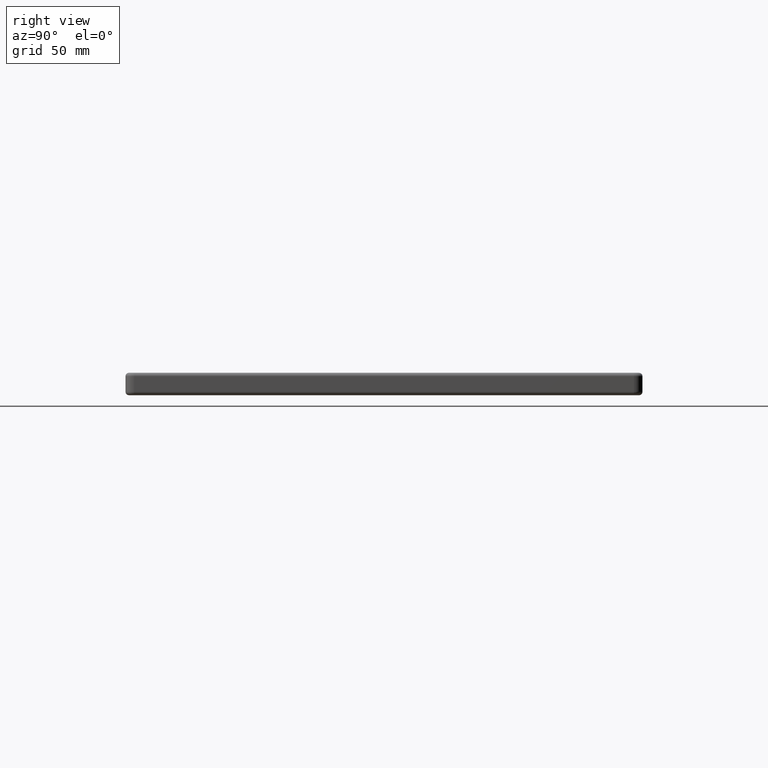
[diagram: clean part render]
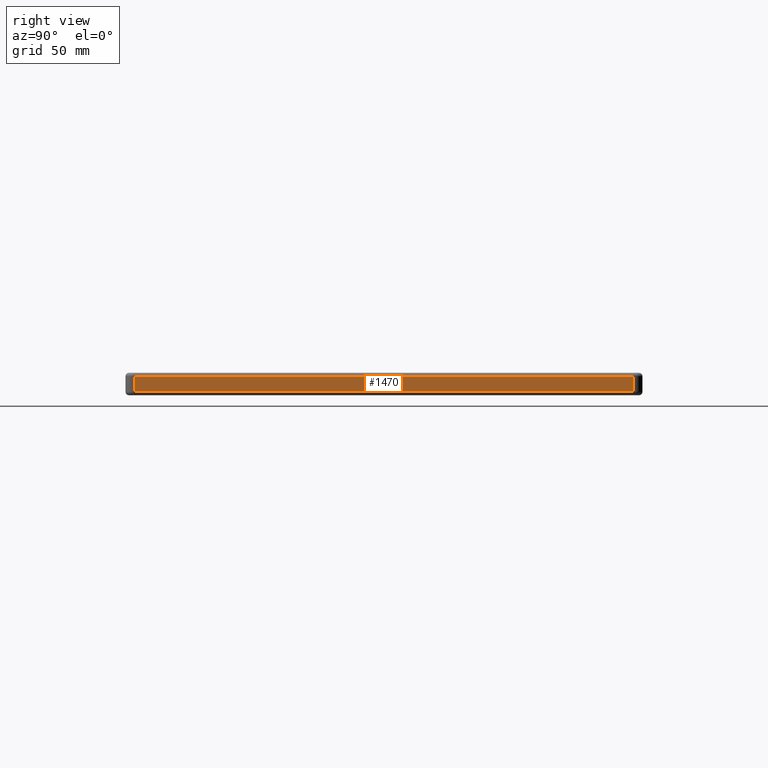
[diagram: same view with one face highlighted and labeled with its STEP entity id]
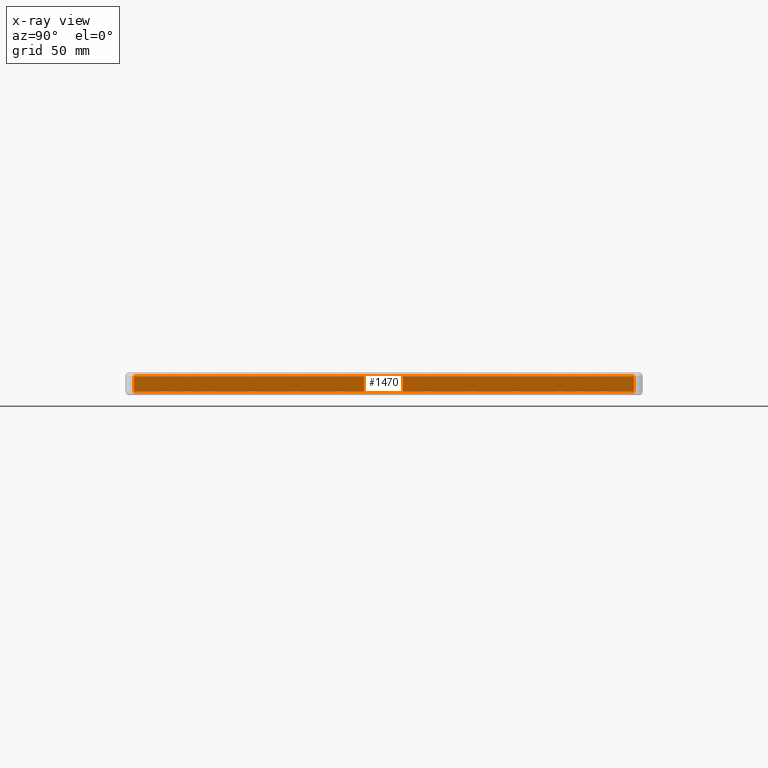
[diagram: x-ray of the same camera — body ghosted, the highlighted face saturated]
A machine part, right view. The second image highlights one B-rep face of the part: STEP entity #1470.
The next image is the same camera in x-ray: the body ghosted, the highlighted face saturated — about 0% of this face is hidden behind the body in this view.
In plain terms, the highlighted planar face has unit normal (1, 0, 0).
Its self-contained STEP definition (entity closure, byte-faithful):
#5 = EDGE_CURVE ( 'NONE', #1199, #5629, #934, .T. ) ;
#135 = DIRECTION ( 'NONE',  ( 0.0000000000000000000, 0.0000000000000000000, -1.000000000000000000 ) ) ;
#232 = ORIENTED_EDGE ( 'NONE', *, *, #4263, .T. ) ;
#266 = ORIENTED_EDGE ( 'NONE', *, *, #9999, .T. ) ;
#431 = LINE ( 'NONE', #508, #8908 ) ;
#508 = CARTESIAN_POINT ( 'NONE',  ( 299.9999999999999400, 294.9999999999999400, -13.00000000000000000 ) ) ;
#934 = LINE ( 'NONE', #7862, #1717 ) ;
#1036 = FACE_OUTER_BOUND ( 'NONE', #10510, .T. ) ;
#1199 = VERTEX_POINT ( 'NONE', #8317 ) ;
#1470 = ADVANCED_FACE ( 'NONE', ( #1036 ), #6598, .T. ) ;
#1717 = VECTOR ( 'NONE', #8750, 1000.000000000000000 ) ;
#2093 = VECTOR ( 'NONE', #5989, 1000.000000000000000 ) ;
#2221 = DIRECTION ( 'NONE',  ( 0.0000000000000000000, 0.0000000000000000000, 1.000000000000000000 ) ) ;
#2310 = CARTESIAN_POINT ( 'NONE',  ( 299.9999999999999400, 4.999999999999999100, -2.000000000000000000 ) ) ;
#2664 = VERTEX_POINT ( 'NONE', #8710 ) ;
#2671 = CARTESIAN_POINT ( 'NONE',  ( 299.9999999999999400, 4.999999999999999100, -13.00000000000000000 ) ) ;
#3442 = EDGE_CURVE ( 'NONE', #9751, #1199, #5937, .T. ) ;
#3464 = AXIS2_PLACEMENT_3D ( 'NONE', #6673, #5845, #135 ) ;
#4263 = EDGE_CURVE ( 'NONE', #2664, #9751, #10037, .T. ) ;
#5629 = VERTEX_POINT ( 'NONE', #6434 ) ;
#5845 = DIRECTION ( 'NONE',  ( 1.000000000000000000, 0.0000000000000000000, 0.0000000000000000000 ) ) ;
#5890 = ORIENTED_EDGE ( 'NONE', *, *, #3442, .T. ) ;
#5937 = LINE ( 'NONE', #2671, #7861 ) ;
#5989 = DIRECTION ( 'NONE',  ( -0.0000000000000000000, -1.000000000000000000, 0.0000000000000000000 ) ) ;
#6434 = CARTESIAN_POINT ( 'NONE',  ( 299.9999999999999400, 294.9999999999999400, -11.00000000000000000 ) ) ;
#6598 = PLANE ( 'NONE',  #3464 ) ;
#6673 = CARTESIAN_POINT ( 'NONE',  ( 299.9999999999999400, 0.0000000000000000000, -13.00000000000000000 ) ) ;
#7276 = CARTESIAN_POINT ( 'NONE',  ( 299.9999999999999400, 5.000000000000004400, -2.000000000000000000 ) ) ;
#7861 = VECTOR ( 'NONE', #10048, 1000.000000000000000 ) ;
#7862 = CARTESIAN_POINT ( 'NONE',  ( 299.9999999999999400, 0.0000000000000000000, -11.00000000000000000 ) ) ;
#8317 = CARTESIAN_POINT ( 'NONE',  ( 299.9999999999999400, 4.999999999999999100, -11.00000000000000000 ) ) ;
#8710 = CARTESIAN_POINT ( 'NONE',  ( 299.9999999999999400, 294.9999999999999400, -2.000000000000000000 ) ) ;
#8750 = DIRECTION ( 'NONE',  ( -0.0000000000000000000, 1.000000000000000000, 0.0000000000000000000 ) ) ;
#8908 = VECTOR ( 'NONE', #2221, 1000.000000000000000 ) ;
#9751 = VERTEX_POINT ( 'NONE', #2310 ) ;
#9768 = ORIENTED_EDGE ( 'NONE', *, *, #5, .T. ) ;
#9999 = EDGE_CURVE ( 'NONE', #5629, #2664, #431, .T. ) ;
#10037 = LINE ( 'NONE', #7276, #2093 ) ;
#10048 = DIRECTION ( 'NONE',  ( 0.0000000000000000000, -0.0000000000000000000, -1.000000000000000000 ) ) ;
#10510 = EDGE_LOOP ( 'NONE', ( #5890, #9768, #266, #232 ) ) ;